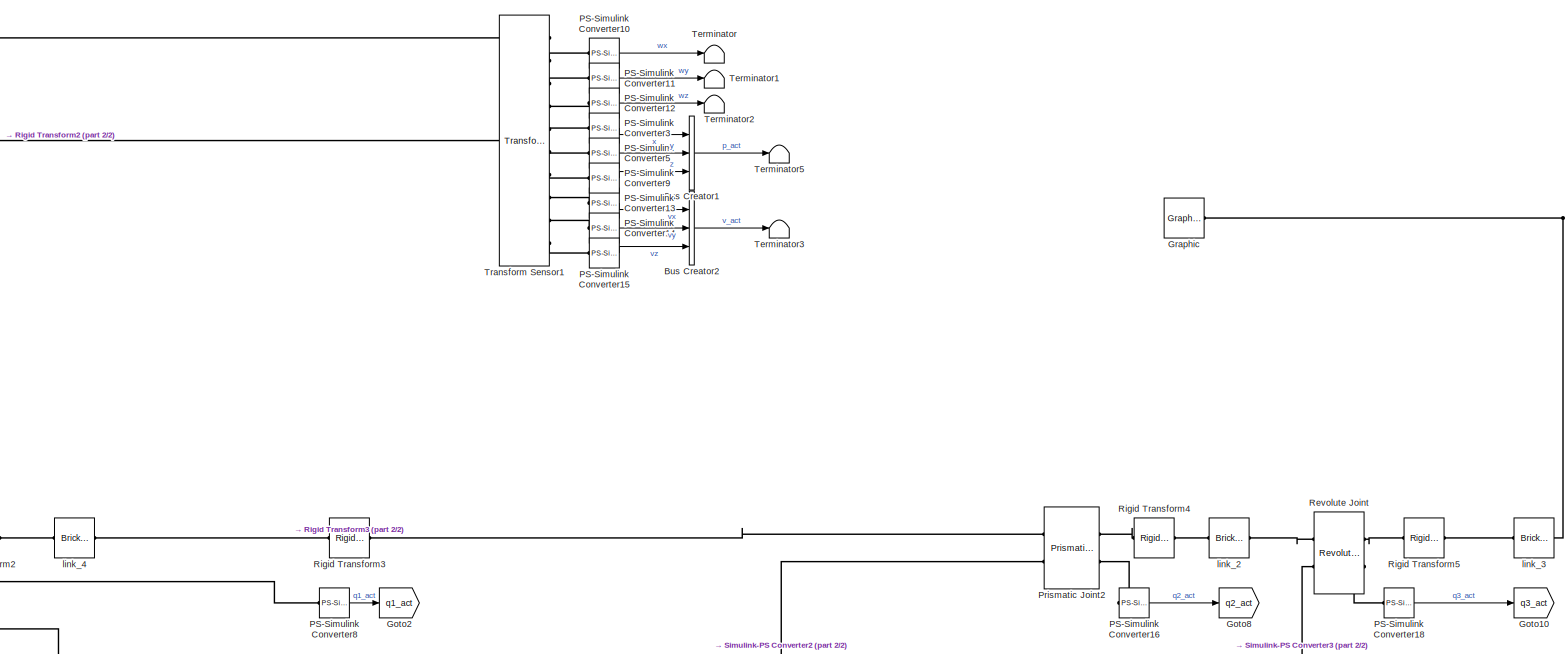
[diagram: root canvas - part 1/2, full width, top band]
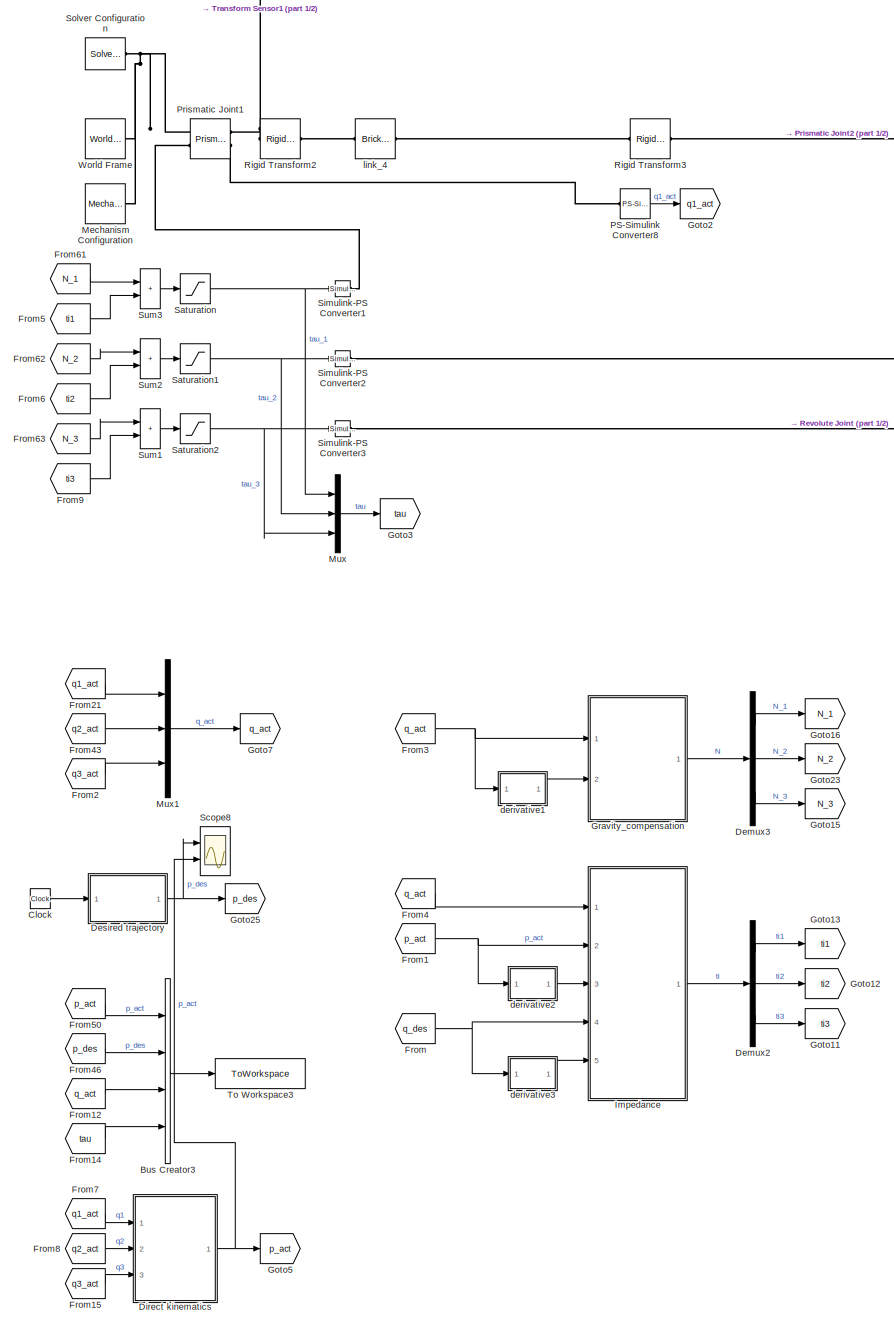
[diagram: root canvas - part 2/2, left side, full height]
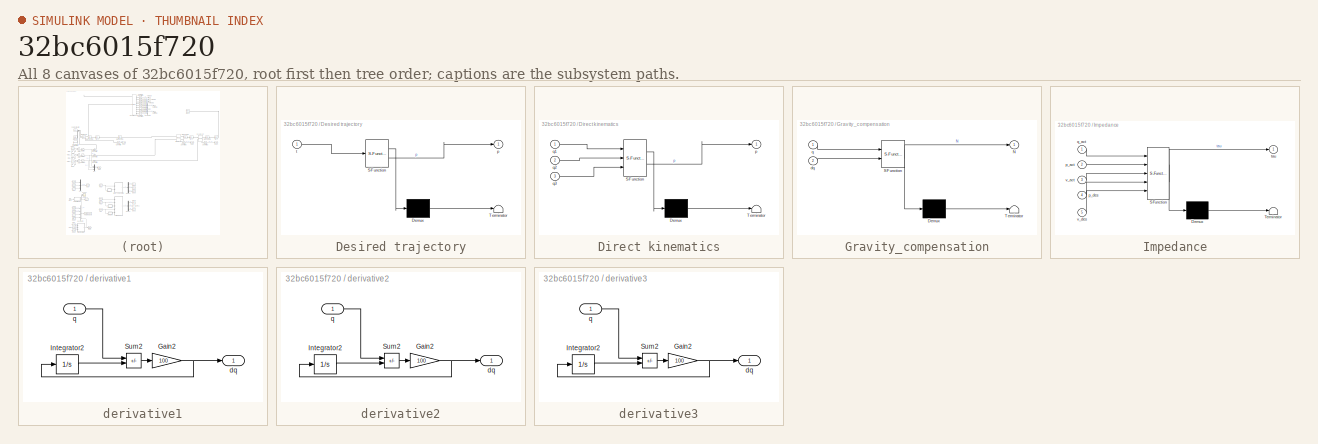
[diagram: thumbnail index - all 8 canvases of the model, root first then tree order]
MODEL slx_32bc6015f720
KIND model
CONFIG AbsTol = auto
CONFIG EnableMultiTasking = on
CONFIG FixedStep = auto
CONFIG MaxStep = auto
CONFIG MinStep = auto
CONFIG RelTol = 1e-3
CONFIG SampleTimeConstraint = Unconstrained
CONFIG SolverName = VariableStepAuto
CONFIG StartTime = 0.0
CONFIG StopTime = 5
BLOCK [BusCreator] Bus Creator1
  DisplayOption = bar
  InheritFromInputs = on
  Inputs = 3
  Ports = [3, 1]
BLOCK [BusCreator] Bus Creator2
  DisplayOption = bar
  InheritFromInputs = on
  Inputs = 3
  Ports = [3, 1]
BLOCK [BusCreator] Bus Creator3
  DisplayOption = bar
  InheritFromInputs = on
  Inputs = 4
  Ports = [4, 1]
BLOCK [Clock] Clock
  Decimation = 4
BLOCK [Demux] Demux2
  Outputs = 3
  Ports = [1, 3]
BLOCK [Demux] Demux3
  Outputs = 3
  Ports = [1, 3]
BLOCK [SubSystem] Desired trajectory
  ErrorFcn = Stateflow.Translate.translate
  PermitHierarchicalResolution = ExplicitOnly
  Ports = [1, 1]
  RequestExecContextInheritance = off
  SFBlockType = MATLAB Function
  TreatAsAtomicUnit = on
BLOCK [Demux] Desired trajectory/ Demux 
  Outputs = 1
  Ports = [1, 1]
BLOCK [S-Function] Desired trajectory/ SFunction 
  EnableBusSupport = on
  FunctionName = sf_sfun
  PortCounts = [1 2]
  Ports = [1, 2]
  SFcnIsStateOwnerBlock = off
  SFunctionDeploymentMode = off
  Tag = Stateflow S-Function 10
BLOCK [Terminator] Desired trajectory/ Terminator 
BLOCK [Outport] Desired trajectory/p
BLOCK [Inport] Desired trajectory/t
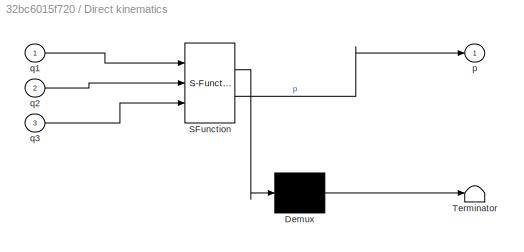
BLOCK [SubSystem] Direct kinematics
  ErrorFcn = Stateflow.Translate.translate
  PermitHierarchicalResolution = ExplicitOnly
  Ports = [3, 1]
  RequestExecContextInheritance = off
  SFBlockType = MATLAB Function
  TreatAsAtomicUnit = on
BLOCK [Demux] Direct kinematics/ Demux 
  Outputs = 1
  Ports = [1, 1]
BLOCK [S-Function] Direct kinematics/ SFunction 
  EnableBusSupport = on
  FunctionName = sf_sfun
  PortCounts = [3 2]
  Ports = [3, 2]
  SFcnIsStateOwnerBlock = off
  SFunctionDeploymentMode = off
  Tag = Stateflow S-Function 21
BLOCK [Terminator] Direct kinematics/ Terminator 
BLOCK [Outport] Direct kinematics/p
  VectorParamsAs1DForOutWhenUnconnected = off
BLOCK [Inport] Direct kinematics/q1
BLOCK [Inport] Direct kinematics/q2
  Port = 2
BLOCK [Inport] Direct kinematics/q3
  Port = 3
BLOCK [From] From
  GotoTag = q_des
BLOCK [From] From1
  GotoTag = p_act
BLOCK [From] From12
  GotoTag = q_act
BLOCK [From] From14
  GotoTag = tau
BLOCK [From] From15
  GotoTag = q3_act
BLOCK [From] From2
  GotoTag = q3_act
BLOCK [From] From21
  GotoTag = q1_act
BLOCK [From] From3
  GotoTag = q_act
BLOCK [From] From4
  GotoTag = q_act
BLOCK [From] From43
  GotoTag = q2_act
BLOCK [From] From46
  GotoTag = p_des
BLOCK [From] From5
  GotoTag = ti1
BLOCK [From] From50
  GotoTag = p_act
BLOCK [From] From6
  GotoTag = ti2
BLOCK [From] From61
  GotoTag = N_1
BLOCK [From] From62
  GotoTag = N_2
BLOCK [From] From63
  GotoTag = N_3
BLOCK [From] From7
  GotoTag = q1_act
BLOCK [From] From8
  GotoTag = q2_act
BLOCK [From] From9
  GotoTag = ti3
BLOCK [Goto] Goto10
  GotoTag = q3_act
BLOCK [Goto] Goto11
  GotoTag = ti3
BLOCK [Goto] Goto12
  GotoTag = ti2
BLOCK [Goto] Goto13
  GotoTag = ti1
BLOCK [Goto] Goto15
  GotoTag = N_3
BLOCK [Goto] Goto16
  GotoTag = N_1
BLOCK [Goto] Goto2
  GotoTag = q1_act
BLOCK [Goto] Goto23
  GotoTag = N_2
BLOCK [Goto] Goto25
  GotoTag = p_des
BLOCK [Goto] Goto3
  GotoTag = tau
BLOCK [Goto] Goto5
  GotoTag = p_act
BLOCK [Goto] Goto7
  GotoTag = q_act
BLOCK [Goto] Goto8
  GotoTag = q2_act
BLOCK [Reference] Graphic  REF=sm_lib/Body Elements/Graphic
  Ports = [0, 0, 0, 0, 0, 0, 1]
  SourceBlock = sm_lib/Body Elements/Graphic
  SourceProductBaseCode = MS
  SourceType = Graphic
BLOCK [SubSystem] Gravity_compensation
  ErrorFcn = Stateflow.Translate.translate
  PermitHierarchicalResolution = ExplicitOnly
  Ports = [2, 1]
  RequestExecContextInheritance = off
  SFBlockType = MATLAB Function
  TreatAsAtomicUnit = on
BLOCK [Demux] Gravity_compensation/ Demux 
  Outputs = 1
  Ports = [1, 1]
BLOCK [S-Function] Gravity_compensation/ SFunction 
  EnableBusSupport = on
  FunctionName = sf_sfun
  PortCounts = [2 2]
  Ports = [2, 2]
  SFcnIsStateOwnerBlock = off
  SFunctionDeploymentMode = off
  Tag = Stateflow S-Function 17
BLOCK [Terminator] Gravity_compensation/ Terminator 
BLOCK [Outport] Gravity_compensation/N
  VectorParamsAs1DForOutWhenUnconnected = off
BLOCK [Inport] Gravity_compensation/dq
  Port = 2
BLOCK [Inport] Gravity_compensation/q
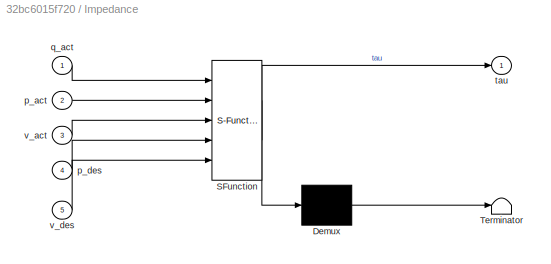
BLOCK [SubSystem] Impedance
  ErrorFcn = Stateflow.Translate.translate
  PermitHierarchicalResolution = ExplicitOnly
  Ports = [5, 1]
  RequestExecContextInheritance = off
  SFBlockType = MATLAB Function
  TreatAsAtomicUnit = on
BLOCK [Demux] Impedance/ Demux 
  Outputs = 1
  Ports = [1, 1]
BLOCK [S-Function] Impedance/ SFunction 
  EnableBusSupport = on
  FunctionName = sf_sfun
  PortCounts = [5 2]
  Ports = [5, 2]
  SFcnIsStateOwnerBlock = off
  SFunctionDeploymentMode = off
  Tag = Stateflow S-Function 18
BLOCK [Terminator] Impedance/ Terminator 
BLOCK [Inport] Impedance/p_act
  Port = 2
BLOCK [Inport] Impedance/p_des
  Port = 4
BLOCK [Inport] Impedance/q_act
BLOCK [Outport] Impedance/tau
  VectorParamsAs1DForOutWhenUnconnected = off
BLOCK [Inport] Impedance/v_act
  Port = 3
BLOCK [Inport] Impedance/v_des
  Port = 5
BLOCK [Reference] Mechanism Configuration  REF=sm_lib/Utilities/Mechanism
Configuration
  Ports = [0, 0, 0, 0, 0, 0, 1]
  SourceBlock = sm_lib/Utilities/Mechanism\nConfiguration
  SourceProductBaseCode = MS
  SourceType = Mechanism\nConfiguration
BLOCK [Mux] Mux
  DisplayOption = bar
  Inputs = 3
  Ports = [3, 1]
BLOCK [Mux] Mux1
  DisplayOption = bar
  Inputs = 3
  Ports = [3, 1]
BLOCK [Reference] PS-Simulink Converter10  REF=nesl_utility/PS-Simulink
Converter
  Ports = [0, 1, 0, 0, 0, 1]
  SourceBlock = nesl_utility/PS-Simulink\nConverter
  SourceProductBaseCode = PW,SS
  SourceType = PS-Simulink\nConverter
BLOCK [Reference] PS-Simulink Converter11  REF=nesl_utility/PS-Simulink
Converter
  Ports = [0, 1, 0, 0, 0, 1]
  SourceBlock = nesl_utility/PS-Simulink\nConverter
  SourceProductBaseCode = PW,SS
  SourceType = PS-Simulink\nConverter
BLOCK [Reference] PS-Simulink Converter12  REF=nesl_utility/PS-Simulink
Converter
  Ports = [0, 1, 0, 0, 0, 1]
  SourceBlock = nesl_utility/PS-Simulink\nConverter
  SourceProductBaseCode = PW,SS
  SourceType = PS-Simulink\nConverter
BLOCK [Reference] PS-Simulink Converter13  REF=nesl_utility/PS-Simulink
Converter
  Ports = [0, 1, 0, 0, 0, 1]
  SourceBlock = nesl_utility/PS-Simulink\nConverter
  SourceProductBaseCode = PW,SS
  SourceType = PS-Simulink\nConverter
BLOCK [Reference] PS-Simulink Converter14  REF=nesl_utility/PS-Simulink
Converter
  Ports = [0, 1, 0, 0, 0, 1]
  SourceBlock = nesl_utility/PS-Simulink\nConverter
  SourceProductBaseCode = PW,SS
  SourceType = PS-Simulink\nConverter
BLOCK [Reference] PS-Simulink Converter15  REF=nesl_utility/PS-Simulink
Converter
  Ports = [0, 1, 0, 0, 0, 1]
  SourceBlock = nesl_utility/PS-Simulink\nConverter
  SourceProductBaseCode = PW,SS
  SourceType = PS-Simulink\nConverter
BLOCK [Reference] PS-Simulink Converter16  REF=nesl_utility/PS-Simulink
Converter
  Ports = [0, 1, 0, 0, 0, 1]
  SourceBlock = nesl_utility/PS-Simulink\nConverter
  SourceProductBaseCode = PW,SS
  SourceType = PS-Simulink\nConverter
BLOCK [Reference] PS-Simulink Converter18  REF=nesl_utility/PS-Simulink
Converter
  Ports = [0, 1, 0, 0, 0, 1]
  SourceBlock = nesl_utility/PS-Simulink\nConverter
  SourceProductBaseCode = PW,SS
  SourceType = PS-Simulink\nConverter
BLOCK [Reference] PS-Simulink Converter3  REF=nesl_utility/PS-Simulink
Converter
  Ports = [0, 1, 0, 0, 0, 1]
  SourceBlock = nesl_utility/PS-Simulink\nConverter
  SourceProductBaseCode = PW,SS
  SourceType = PS-Simulink\nConverter
BLOCK [Reference] PS-Simulink Converter5  REF=nesl_utility/PS-Simulink
Converter
  Ports = [0, 1, 0, 0, 0, 1]
  SourceBlock = nesl_utility/PS-Simulink\nConverter
  SourceProductBaseCode = PW,SS
  SourceType = PS-Simulink\nConverter
BLOCK [Reference] PS-Simulink Converter8  REF=nesl_utility/PS-Simulink
Converter
  Ports = [0, 1, 0, 0, 0, 1]
  SourceBlock = nesl_utility/PS-Simulink\nConverter
  SourceProductBaseCode = PW,SS
  SourceType = PS-Simulink\nConverter
BLOCK [Reference] PS-Simulink Converter9  REF=nesl_utility/PS-Simulink
Converter
  Ports = [0, 1, 0, 0, 0, 1]
  SourceBlock = nesl_utility/PS-Simulink\nConverter
  SourceProductBaseCode = PW,SS
  SourceType = PS-Simulink\nConverter
BLOCK [Reference] Prismatic Joint1  REF=sm_lib/Joints/Prismatic
Joint
  Ports = [0, 0, 0, 0, 0, 2, 2]
  SourceBlock = sm_lib/Joints/Prismatic\nJoint
  SourceProductBaseCode = MS
  SourceType = Prismatic\nJoint
BLOCK [Reference] Prismatic Joint2  REF=sm_lib/Joints/Prismatic
Joint
  Ports = [0, 0, 0, 0, 0, 2, 2]
  SourceBlock = sm_lib/Joints/Prismatic\nJoint
  SourceProductBaseCode = MS
  SourceType = Prismatic\nJoint
BLOCK [Reference] Revolute Joint  REF=sm_lib/Joints/Revolute Joint
  Ports = [0, 0, 0, 0, 0, 2, 2]
  SourceBlock = sm_lib/Joints/Revolute Joint
  SourceProductBaseCode = MS
  SourceType = Revolute Joint
BLOCK [Reference] Rigid Transform2  REF=sm_lib/Frames and
Transforms/Rigid
Transform
  Ports = [0, 0, 0, 0, 0, 1, 1]
  SourceBlock = sm_lib/Frames and\nTransforms/Rigid\nTransform
  SourceProductBaseCode = MS
  SourceType = Rigid\nTransform
BLOCK [Reference] Rigid Transform3  REF=sm_lib/Frames and
Transforms/Rigid
Transform
  Ports = [0, 0, 0, 0, 0, 1, 1]
  SourceBlock = sm_lib/Frames and\nTransforms/Rigid\nTransform
  SourceProductBaseCode = MS
  SourceType = Rigid\nTransform
BLOCK [Reference] Rigid Transform4  REF=sm_lib/Frames and
Transforms/Rigid
Transform
  Ports = [0, 0, 0, 0, 0, 1, 1]
  SourceBlock = sm_lib/Frames and\nTransforms/Rigid\nTransform
  SourceProductBaseCode = MS
  SourceType = Rigid\nTransform
BLOCK [Reference] Rigid Transform5  REF=sm_lib/Frames and
Transforms/Rigid
Transform
  Ports = [0, 0, 0, 0, 0, 1, 1]
  SourceBlock = sm_lib/Frames and\nTransforms/Rigid\nTransform
  SourceProductBaseCode = MS
  SourceType = Rigid\nTransform
BLOCK [Saturate] Saturation
  LowerLimit = -0.23
  UpperLimit = 0.23
BLOCK [Saturate] Saturation1
  LowerLimit = -0.43
  UpperLimit = 0.43
BLOCK [Saturate] Saturation2
  LowerLimit = -0.19
  UpperLimit = 0.19
BLOCK [Scope] Scope8
  Floating = off
  NumInputPorts = 2
  Ports = [2]
  ScopeSpecificationString = Simulink.scopes.TimeScopeBlockCfg('CurrentConfiguration', extmgr.ConfigurationSet(extmgr.Configuration('Core','General UI',true),extmgr.Configuration('Core','Source UI',true),extmgr.Configuration('Sources','WiredSimulink',true),extmgr.Configuration('Visuals','Time Domain',true,'SerializedDisplays',{struct('MinYLimReal','-0.125','MaxYLimReal','1.125','YLabelReal','','MinYLimMag','0.00000','MaxYLimM...<+1465ch>
BLOCK [Reference] Simulink-PS Converter1  REF=nesl_utility/Simulink-PS
Converter
  Ports = [1, 0, 0, 0, 0, 0, 1]
  SourceBlock = nesl_utility/Simulink-PS\nConverter
  SourceProductBaseCode = PW,SS
  SourceType = Simulink-PS\nConverter
BLOCK [Reference] Simulink-PS Converter2  REF=nesl_utility/Simulink-PS
Converter
  Ports = [1, 0, 0, 0, 0, 0, 1]
  SourceBlock = nesl_utility/Simulink-PS\nConverter
  SourceProductBaseCode = PW,SS
  SourceType = Simulink-PS\nConverter
BLOCK [Reference] Simulink-PS Converter3  REF=nesl_utility/Simulink-PS
Converter
  Ports = [1, 0, 0, 0, 0, 0, 1]
  SourceBlock = nesl_utility/Simulink-PS\nConverter
  SourceProductBaseCode = PW,SS
  SourceType = Simulink-PS\nConverter
BLOCK [Reference] Solver Configuration  REF=nesl_utility/Solver
Configuration
  Ports = [0, 0, 0, 0, 0, 0, 1]
  SourceBlock = nesl_utility/Solver\nConfiguration
  SourceProductBaseCode = PW,SS
  SourceType = Solver\nConfiguration
BLOCK [Sum] Sum1
  IconShape = rectangular
  Ports = [2, 1]
BLOCK [Sum] Sum2
  IconShape = rectangular
  Ports = [2, 1]
BLOCK [Sum] Sum3
  IconShape = rectangular
  Ports = [2, 1]
BLOCK [Terminator] Terminator
BLOCK [Terminator] Terminator1
BLOCK [Terminator] Terminator2
BLOCK [Terminator] Terminator3
BLOCK [Terminator] Terminator5
BLOCK [ToWorkspace] To Workspace3
  FixptAsFi = on
  MaxDataPoints = inf
  Ports = [1]
  SampleTime = -1
  SaveFormat = Timeseries
  VariableName = outputs
BLOCK [Reference] Transform Sensor1  REF=sm_lib/Frames and
Transforms/Transform
Sensor
  Ports = [0, 0, 0, 0, 0, 1, 10]
  SourceBlock = sm_lib/Frames and\nTransforms/Transform\nSensor
  SourceProductBaseCode = MS
  SourceType = Transform\nSensor
BLOCK [Reference] World Frame  REF=sm_lib/Frames and
Transforms/World Frame
  Ports = [0, 0, 0, 0, 0, 0, 1]
  SourceBlock = sm_lib/Frames and\nTransforms/World Frame
  SourceProductBaseCode = MS
  SourceType = World Frame
BLOCK [SubSystem] derivative1
  Ports = [1, 1]
  RequestExecContextInheritance = off
BLOCK [Gain] derivative1/Gain2
  Gain = 100
BLOCK [Integrator] derivative1/Integrator2
  Ports = [1, 1]
BLOCK [Sum] derivative1/Sum2
  IconShape = rectangular
  Inputs = +-
  Ports = [2, 1]
BLOCK [Outport] derivative1/dq
BLOCK [Inport] derivative1/q
BLOCK [SubSystem] derivative2
  Ports = [1, 1]
  RequestExecContextInheritance = off
BLOCK [Gain] derivative2/Gain2
  Gain = 100
BLOCK [Integrator] derivative2/Integrator2
  Ports = [1, 1]
BLOCK [Sum] derivative2/Sum2
  IconShape = rectangular
  Inputs = +-
  Ports = [2, 1]
BLOCK [Outport] derivative2/dq
BLOCK [Inport] derivative2/q
BLOCK [SubSystem] derivative3
  Ports = [1, 1]
  RequestExecContextInheritance = off
BLOCK [Gain] derivative3/Gain2
  Gain = 100
BLOCK [Integrator] derivative3/Integrator2
  Ports = [1, 1]
BLOCK [Sum] derivative3/Sum2
  IconShape = rectangular
  Inputs = +-
  Ports = [2, 1]
BLOCK [Outport] derivative3/dq
BLOCK [Inport] derivative3/q
BLOCK [Reference] link_2  REF=sm_lib/Body Elements/Brick Solid
  Ports = [0, 0, 0, 0, 0, 1, 1]
  SourceBlock = sm_lib/Body Elements/Brick Solid
  SourceProductBaseCode = MS
  SourceType = Brick Solid
BLOCK [Reference] link_3  REF=sm_lib/Body Elements/Brick Solid
  Ports = [0, 0, 0, 0, 0, 1, 1]
  SourceBlock = sm_lib/Body Elements/Brick Solid
  SourceProductBaseCode = MS
  SourceType = Brick Solid
BLOCK [Reference] link_4  REF=sm_lib/Body Elements/Brick Solid
  Ports = [0, 0, 0, 0, 0, 1, 1]
  SourceBlock = sm_lib/Body Elements/Brick Solid
  SourceProductBaseCode = MS
  SourceType = Brick Solid
LINE Bus Creator1:1 -> Terminator5:1
LINE Bus Creator2:1 -> Terminator3:1
LINE Bus Creator3:1 -> To Workspace3:1
LINE Clock:1 -> Desired trajectory:1
LINE Demux2:1 -> Goto13:1
LINE Demux2:2 -> Goto12:1
LINE Demux2:3 -> Goto11:1
LINE Demux3:1 -> Goto16:1
LINE Demux3:2 -> Goto23:1
LINE Demux3:3 -> Goto15:1
NET Desired trajectory:1 -> Goto25:1, Scope8:1
NET Direct kinematics:1 -> Goto5:1, Scope8:2
LINE From12:1 -> Bus Creator3:3
LINE From14:1 -> Bus Creator3:4
LINE From15:1 -> Direct kinematics:3
NET From1:1 -> Impedance:2, derivative2:1
LINE From21:1 -> Mux1:1
LINE From2:1 -> Mux1:3
NET From3:1 -> Gravity_compensation:1, derivative1:1
LINE From43:1 -> Mux1:2
LINE From46:1 -> Bus Creator3:2
LINE From4:1 -> Impedance:1
LINE From50:1 -> Bus Creator3:1
LINE From5:1 -> Sum3:2
LINE From61:1 -> Sum3:1
LINE From62:1 -> Sum2:1
LINE From63:1 -> Sum1:1
LINE From6:1 -> Sum2:2
LINE From7:1 -> Direct kinematics:1
LINE From8:1 -> Direct kinematics:2
LINE From9:1 -> Sum1:2
NET From:1 -> Impedance:4, derivative3:1
LINE Gravity_compensation:1 -> Demux3:1
LINE Impedance:1 -> Demux2:1
LINE Mux1:1 -> Goto7:1
LINE Mux:1 -> Goto3:1
LINE PS-Simulink Converter10:1 -> Terminator:1
LINE PS-Simulink Converter11:1 -> Terminator1:1
LINE PS-Simulink Converter12:1 -> Terminator2:1
LINE PS-Simulink Converter13:1 -> Bus Creator2:1
LINE PS-Simulink Converter14:1 -> Bus Creator2:2
LINE PS-Simulink Converter15:1 -> Bus Creator2:3
LINE PS-Simulink Converter16:1 -> Goto8:1
LINE PS-Simulink Converter18:1 -> Goto10:1
LINE PS-Simulink Converter3:1 -> Bus Creator1:1
LINE PS-Simulink Converter5:1 -> Bus Creator1:2
LINE PS-Simulink Converter8:1 -> Goto2:1
LINE PS-Simulink Converter9:1 -> Bus Creator1:3
NET Saturation1:1 -> Mux:2, Simulink-PS Converter2:1
NET Saturation2:1 -> Mux:3, Simulink-PS Converter3:1
NET Saturation:1 -> Mux:1, Simulink-PS Converter1:1
LINE Sum1:1 -> Saturation2:1
LINE Sum2:1 -> Saturation1:1
LINE Sum3:1 -> Saturation:1
NET derivative1/Gain2:1 -> derivative1/Integrator2:1, derivative1/dq:1
LINE derivative1/Integrator2:1 -> derivative1/Sum2:2
LINE derivative1/Sum2:1 -> derivative1/Gain2:1
LINE derivative1/q:1 -> derivative1/Sum2:1
LINE derivative1:1 -> Gravity_compensation:2
NET derivative2/Gain2:1 -> derivative2/Integrator2:1, derivative2/dq:1
LINE derivative2/Integrator2:1 -> derivative2/Sum2:2
LINE derivative2/Sum2:1 -> derivative2/Gain2:1
LINE derivative2/q:1 -> derivative2/Sum2:1
LINE derivative2:1 -> Impedance:3
NET derivative3/Gain2:1 -> derivative3/Integrator2:1, derivative3/dq:1
LINE derivative3/Integrator2:1 -> derivative3/Sum2:2
LINE derivative3/Sum2:1 -> derivative3/Gain2:1
LINE derivative3/q:1 -> derivative3/Sum2:1
LINE derivative3:1 -> Impedance:5
PNET net1: Graphic:RConn1 -- Transform Sensor1:RConn1 -- link_3:RConn1
PNET net2: Mechanism Configuration:RConn1 -- Prismatic Joint1:LConn1 -- Solver Configuration:RConn1 -- World Frame:RConn1
PLINE PS-Simulink Converter10:LConn1 -- Transform Sensor1:RConn2
PLINE PS-Simulink Converter11:LConn1 -- Transform Sensor1:RConn3
PLINE PS-Simulink Converter12:LConn1 -- Transform Sensor1:RConn4
PLINE PS-Simulink Converter13:LConn1 -- Transform Sensor1:RConn8
PLINE PS-Simulink Converter14:LConn1 -- Transform Sensor1:RConn9
PLINE PS-Simulink Converter15:LConn1 -- Transform Sensor1:RConn10
PLINE PS-Simulink Converter16:LConn1 -- Prismatic Joint2:RConn2
PLINE PS-Simulink Converter18:LConn1 -- Revolute Joint:RConn2
PLINE PS-Simulink Converter3:LConn1 -- Transform Sensor1:RConn5
PLINE PS-Simulink Converter5:LConn1 -- Transform Sensor1:RConn6
PLINE PS-Simulink Converter8:LConn1 -- Prismatic Joint1:RConn2
PLINE PS-Simulink Converter9:LConn1 -- Transform Sensor1:RConn7
PLINE Prismatic Joint1:LConn2 -- Simulink-PS Converter1:RConn1
PNET net3: Prismatic Joint1:RConn1 -- Rigid Transform2:LConn1 -- Transform Sensor1:LConn1
PLINE Prismatic Joint2:LConn1 -- Rigid Transform3:RConn1
PLINE Prismatic Joint2:LConn2 -- Simulink-PS Converter2:RConn1
PLINE Prismatic Joint2:RConn1 -- Rigid Transform4:LConn1
PLINE Revolute Joint:LConn1 -- link_2:RConn1
PLINE Revolute Joint:LConn2 -- Simulink-PS Converter3:RConn1
PLINE Revolute Joint:RConn1 -- Rigid Transform5:LConn1
PLINE Rigid Transform2:RConn1 -- link_4:LConn1
PLINE Rigid Transform3:LConn1 -- link_4:RConn1
PLINE Rigid Transform4:RConn1 -- link_2:LConn1
PLINE Rigid Transform5:RConn1 -- link_3:LConn1
note: NET lines group one-source signal fan-out (src -> all destinations, sorted); 1:1 wires keep LINE; PNET lines group multi-terminal physical nets as a canonical sorted terminal list (undirected conserving connections); 2-terminal nets keep the pairwise PLINE form
CHART Desired trajectory states=1 transitions=1
  STATE_LABEL 'eML_blk_kernel()'
  STATE_LABEL 'SCRIPT:\nfunction p = fcn(t)\n% p = [0.2*sin(1*t)+0.3;...\n%      0.2*cos(1*t)+0.3;...\n%      0.2*cos(1*t)+0.6];\np = [0;...\n      0;...\n      abs(3*cos(4*t))];\n\n'
CHART Gravity_compensation states=1 transitions=1
  STATE_LABEL 'eML_blk_kernel()'
  STATE_LABEL 'SCRIPT:\nfunction N= fcn(q,dq)\nq1=q(1); q2=q(2); q3=q(3);\ndq1=dq(1); dq2=dq(2); dq3=dq(3);\n\nl1=0.23; l2=0.43; l3=0.19;\nm1 = 16.726;\nm2 = 6.237;\nm3 = 12.243;\ng=9.80665; \n\nN =[g*(m1+m2+m3);...\n   g*(m2+m3);...\n   g*l3*m3*cos(q3)/2]; \n% N is from the Dynamics.mlx file\n\n\n'
CHART Impedance states=1 transitions=1
  STATE_LABEL 'eML_blk_kernel()'
  STATE_LABEL 'SCRIPT:\nfunction tau = fcn(q_act,p_act,v_act,p_des,v_des)\nq1=q_act(1); q2=q_act(2); q3=q_act(3);\n\nl1=0.3;l2=0.4;l3=0.4; % geometry\nK=1000; D=100;\nF=K*(p_des-p_act)+D*(v_des-v_act);\nfx=F(1); fy=F(2); fz=F(3);\n\ntau=[fz;...\nfz;...\n0]; % tau is from the Dynamics.mlx file\n\n % impedance torque'
CHART Direct kinematics states=1 transitions=1
  STATE_LABEL 'eML_blk_kernel()'
  STATE_LABEL 'SCRIPT:\nfunction p = fcn(q1, q2, q3)\nl1=0.23;l2=0.43;l3=0.19; % m\n% direct kinematics\np = [0;...\n 0;...\n      q1-q2+q3*cos(q2-q1)];\n  % P is from the Dynamics.mlx file\n'
CHART  states=0 transitions=0
CHART  states=0 transitions=0
CHART  states=0 transitions=0
CHART  states=0 transitions=0
